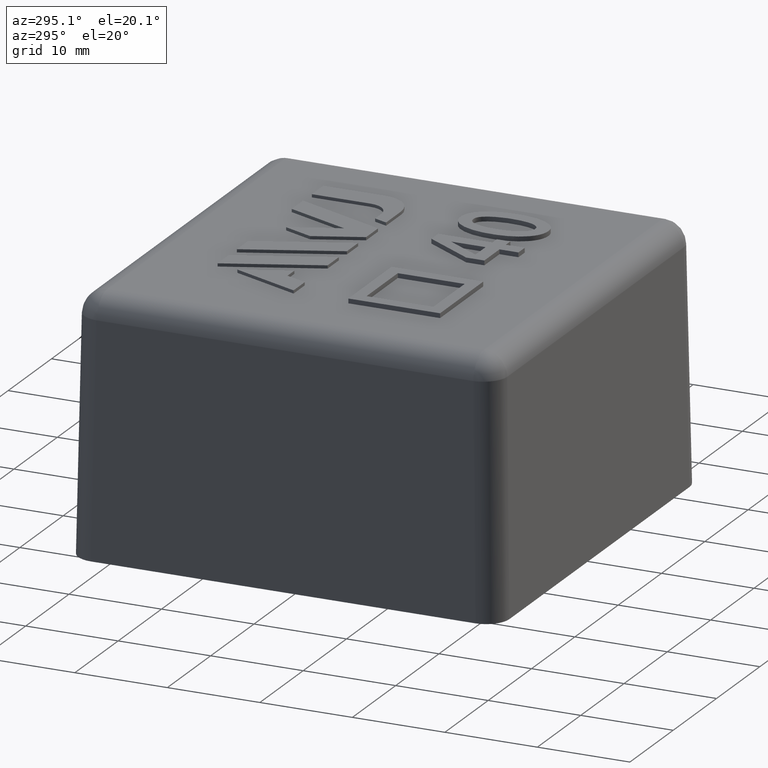
[diagram: clean part render]
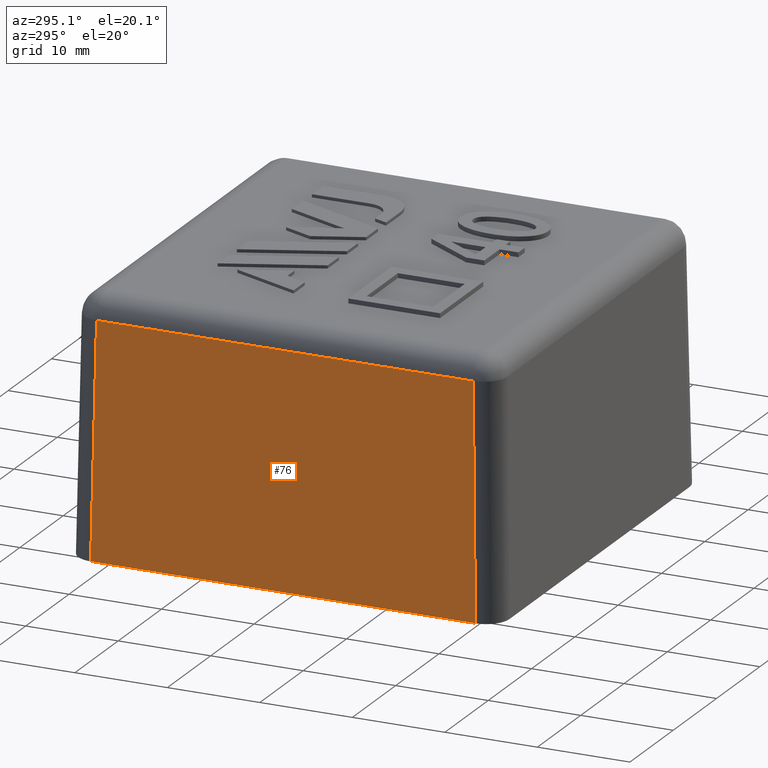
[diagram: same view with one face highlighted and labeled with its STEP entity id]
A machine part, auxiliary view. The second image highlights one B-rep face of the part: STEP entity #76.
In plain terms, the highlighted planar face has unit normal (-0.9998, 0, 0.0175).
Its self-contained STEP definition (entity closure, byte-faithful):
#76 = ADVANCED_FACE( '', ( #172 ), #173, .T. );
#172 = FACE_OUTER_BOUND( '', #358, .T. );
#173 = PLANE( '', #359 );
#358 = EDGE_LOOP( '', ( #587, #588, #589, #590 ) );
#359 = AXIS2_PLACEMENT_3D( '', #591, #592, #593 );
#587 = ORIENTED_EDGE( '', *, *, #1276, .T. );
#588 = ORIENTED_EDGE( '', *, *, #1277, .T. );
#589 = ORIENTED_EDGE( '', *, *, #1278, .T. );
#590 = ORIENTED_EDGE( '', *, *, #1279, .T. );
#591 = CARTESIAN_POINT( '', ( -23.3000000000000, -23.3000000000000, 0.000000000000000 ) );
#592 = DIRECTION( '', ( -0.999847695156391, 0.000000000000000, 0.0174524064372835 ) );
#593 = DIRECTION( '', ( 0.0174524064372835, 0.000000000000000, 0.999847695156391 ) );
#1276 = EDGE_CURVE( '', #1526, #1527, #1528, .T. );
#1277 = EDGE_CURVE( '', #1527, #1529, #1530, .F. );
#1278 = EDGE_CURVE( '', #1529, #1531, #1532, .F. );
#1279 = EDGE_CURVE( '', #1531, #1526, #1533, .F. );
#1526 = VERTEX_POINT( '', #1936 );
#1527 = VERTEX_POINT( '', #1937 );
#1528 = LINE( '', #1938, #1939 );
#1529 = VERTEX_POINT( '', #1940 );
#1530 = LINE( '', #1941, #1942 );
#1531 = VERTEX_POINT( '', #1943 );
#1532 = LINE( '', #1944, #1945 );
#1533 = LINE( '', #1946, #1947 );
#1936 = CARTESIAN_POINT( '', ( -23.3000000000000, -20.8003807621090, 0.000000000000000 ) );
#1937 = CARTESIAN_POINT( '', ( -22.8628617945758, -20.3632425566848, 25.0436310160932 ) );
#1938 = CARTESIAN_POINT( '', ( -23.3007611184247, -20.8011418805338, -0.0436044453501647 ) );
#1939 = VECTOR( '', #2420, 1000.00000000000 );
#1940 = CARTESIAN_POINT( '', ( -22.8628617945758, 20.3632425566848, 25.0436310160932 ) );
#1941 = CARTESIAN_POINT( '', ( -22.8628617945758, 20.3203664765830, 25.0436310160932 ) );
#1942 = VECTOR( '', #2421, 1000.00000000000 );
#1943 = CARTESIAN_POINT( '', ( -23.3000000000000, 20.8003807621090, 0.000000000000000 ) );
#1944 = CARTESIAN_POINT( '', ( -23.2865717098718, 20.7869524719809, 0.769306226209606 ) );
#1945 = VECTOR( '', #2422, 1000.00000000000 );
#1946 = CARTESIAN_POINT( '', ( -23.3000000000000, -23.3000000000000, 0.000000000000000 ) );
#1947 = VECTOR( '', #2423, 1000.00000000000 );
#2420 = DIRECTION( '', ( 0.0174497491606827, 0.0174497491606827, 0.999695459881887 ) );
#2421 = DIRECTION( '', ( 0.000000000000000, -1.00000000000000, 0.000000000000000 ) );
#2422 = DIRECTION( '', ( 0.0174497491606827, -0.0174497491606827, 0.999695459881887 ) );
#2423 = DIRECTION( '', ( 0.000000000000000, 1.00000000000000, 0.000000000000000 ) );